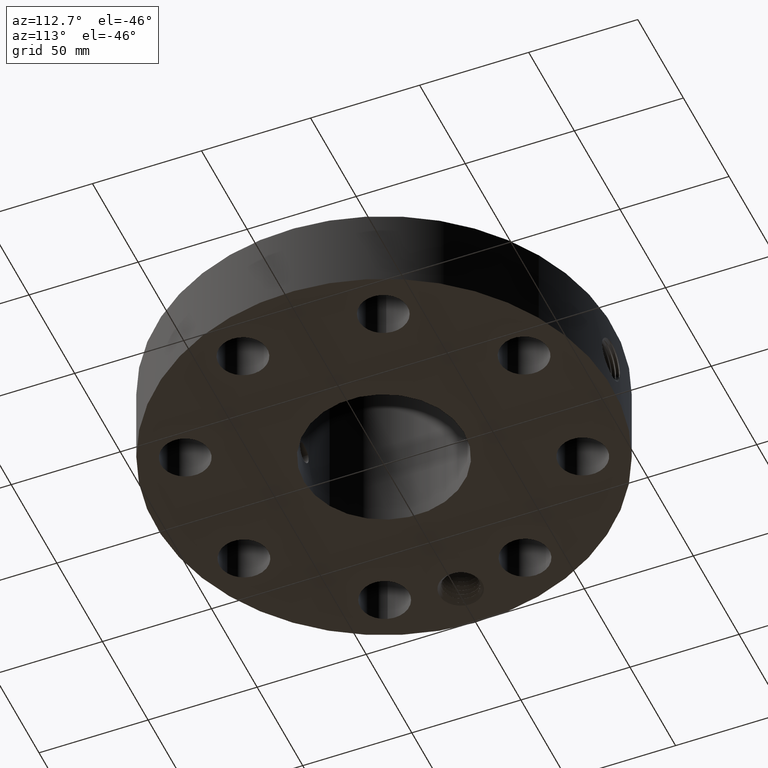
[diagram: clean part render]
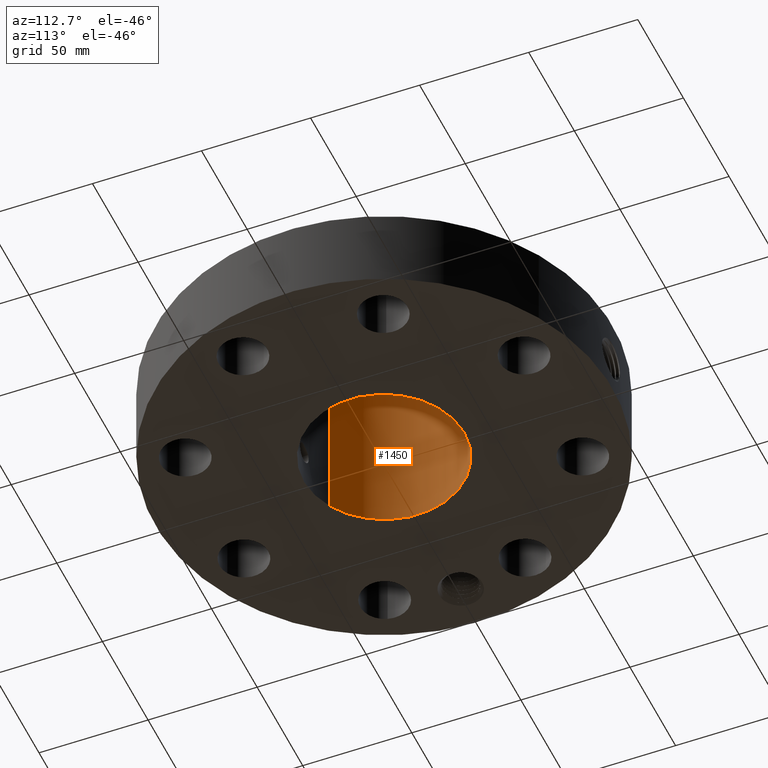
[diagram: same view with one face highlighted and labeled with its STEP entity id]
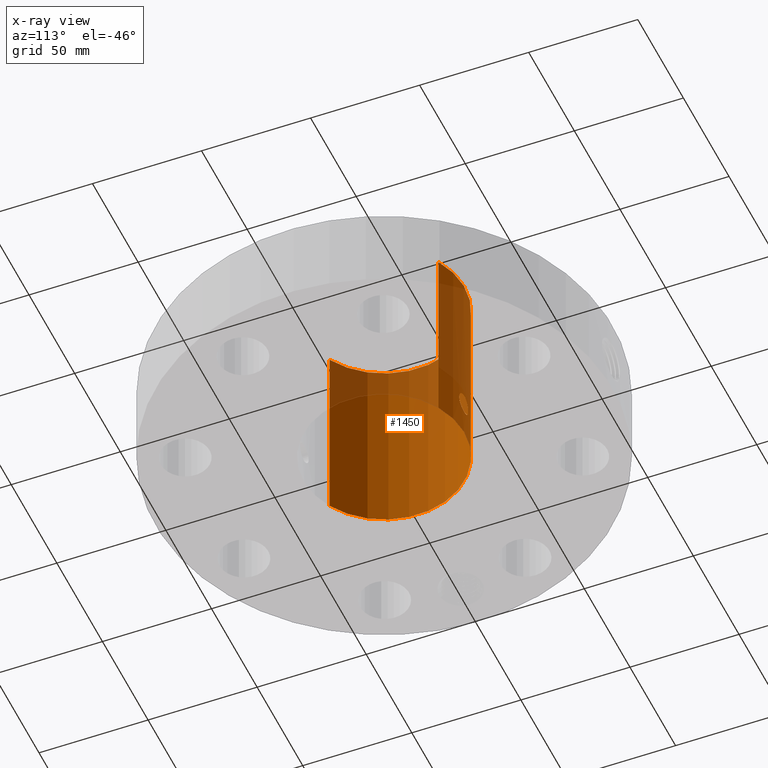
[diagram: x-ray of the same camera — body ghosted, the highlighted face saturated]
A machine part, auxiliary view. The second image highlights one B-rep face of the part: STEP entity #1450.
The next image is the same camera in x-ray: the body ghosted, the highlighted face saturated — about 30% of this face is hidden behind the body in this view.
In plain terms, the highlighted cylindrical surface (partial cylindrical patch) has radius 36.83 mm, axis along (0, 0, -1).
Its self-contained STEP definition (entity closure, byte-faithful):
#251=AXIS2_PLACEMENT_3D('Circle Axis2P3D',#249,#250,$) ;
#1327=AXIS2_PLACEMENT_3D('Cylinder Axis2P3D',#1324,#1325,#1326) ;
#1399=AXIS2_PLACEMENT_3D('Circle Axis2P3D',#1397,#1398,$) ;
#244=CARTESIAN_POINT('Vertex',(0.695167030979,1.27249471475,0.250000000001)) ;
#246=CARTESIAN_POINT('Vertex',(-0.695167030979,-1.27249471475,0.250000000001)) ;
#249=CARTESIAN_POINT('Axis2P3D Location',(0.,0.,0.250000000001)) ;
#1324=CARTESIAN_POINT('Axis2P3D Location',(0.,0.,2.00000000001)) ;
#1333=CARTESIAN_POINT('Vertex',(0.695167030979,1.27249471475,3.75000000002)) ;
#1335=CARTESIAN_POINT('Vertex',(-0.695167030979,-1.27249471475,3.75000000002)) ;
#1338=CARTESIAN_POINT('Line Origine',(0.695167030979,1.27249471475,2.00000000001)) ;
#1343=CARTESIAN_POINT('Line Origine',(-0.695167030979,-1.27249471475,2.00000000001)) ;
#1397=CARTESIAN_POINT('Axis2P3D Location',(0.,0.,3.75000000002)) ;
#1409=CARTESIAN_POINT('Control Point',(0.164546730355,1.44063332377,1.02989228849)) ;
#1410=CARTESIAN_POINT('Control Point',(0.153731070918,1.44186867031,1.04969022029)) ;
#1411=CARTESIAN_POINT('Control Point',(0.139944075107,1.4433405746,1.06785011419)) ;
#1412=CARTESIAN_POINT('Control Point',(0.123510243047,1.44489924446,1.08378933192)) ;
#1413=CARTESIAN_POINT('Control Point',(0.0771457667528,1.44849158589,1.11680313088)) ;
#1414=CARTESIAN_POINT('Control Point',(0.0211416426459,1.45046278414,1.13099774423)) ;
#1415=CARTESIAN_POINT('Control Point',(-0.0138877540667,1.45055904578,1.13166367444)) ;
#1416=CARTESIAN_POINT('Control Point',(-0.0704180054579,1.4488559579,1.11959366782)) ;
#1417=CARTESIAN_POINT('Control Point',(-0.118016251887,1.44536877231,1.08833659058)) ;
#1418=CARTESIAN_POINT('Control Point',(-0.135050957039,1.44381724598,1.07301259639)) ;
#1419=CARTESIAN_POINT('Control Point',(-0.174424603887,1.43973532201,1.02499594326)) ;
#1420=CARTESIAN_POINT('Control Point',(-0.192227243461,1.43719597583,0.964023576824)) ;
#1421=CARTESIAN_POINT('Control Point',(-0.192994709917,1.43707883877,0.92318772585)) ;
#1422=CARTESIAN_POINT('Control Point',(-0.183180576882,1.43850499696,0.884216738791)) ;
#1423=CARTESIAN_POINT('Control Point',(-0.164546730355,1.44063332377,0.850107711515)) ;
#1424=CARTESIAN_POINT('Vertex',(0.164546730355,1.44063332377,1.02989228849)) ;
#1426=CARTESIAN_POINT('Vertex',(-0.164546730355,1.44063332377,0.850107711515)) ;
#1430=CARTESIAN_POINT('Control Point',(-0.164546730355,1.44063332377,0.850107711515)) ;
#1431=CARTESIAN_POINT('Control Point',(-0.153731070916,1.44186867031,0.83030977971)) ;
#1432=CARTESIAN_POINT('Control Point',(-0.139944075102,1.4433405746,0.81214988581)) ;
#1433=CARTESIAN_POINT('Control Point',(-0.123510243057,1.44489924446,0.796210668093)) ;
#1434=CARTESIAN_POINT('Control Point',(-0.0771457667598,1.44849158589,0.76319686913)) ;
#1435=CARTESIAN_POINT('Control Point',(-0.0211416426477,1.45046278414,0.749002255781)) ;
#1436=CARTESIAN_POINT('Control Point',(0.013887754062,1.45055904578,0.748336325563)) ;
#1437=CARTESIAN_POINT('Control Point',(0.0704180054478,1.4488559579,0.760406332182)) ;
#1438=CARTESIAN_POINT('Control Point',(0.118016251874,1.44536877231,0.791663409415)) ;
#1439=CARTESIAN_POINT('Control Point',(0.135050957045,1.44381724598,0.806987403628)) ;
#1440=CARTESIAN_POINT('Control Point',(0.174424603893,1.439735322,0.855004056754)) ;
#1441=CARTESIAN_POINT('Control Point',(0.192227243466,1.43719597583,0.915976423199)) ;
#1442=CARTESIAN_POINT('Control Point',(0.192994709922,1.43707883877,0.956812274138)) ;
#1443=CARTESIAN_POINT('Control Point',(0.183180576887,1.43850499696,0.995783261208)) ;
#1444=CARTESIAN_POINT('Control Point',(0.164546730355,1.44063332377,1.02989228849)) ;
#250=DIRECTION('Axis2P3D Direction',(0.,0.,-0.0393700787402)) ;
#1325=DIRECTION('Axis2P3D Direction',(0.,0.,-0.0393700787402)) ;
#1326=DIRECTION('Axis2P3D XDirection',(-0.0188750212049,-0.0345504945626,0.)) ;
#1339=DIRECTION('Vector Direction',(0.,0.,-0.0393700787402)) ;
#1344=DIRECTION('Vector Direction',(0.,0.,-0.0393700787402)) ;
#1398=DIRECTION('Axis2P3D Direction',(0.,0.,-0.0393700787402)) ;
#1340=VECTOR('Line Direction',#1339,0.0393700787402) ;
#1345=VECTOR('Line Direction',#1344,0.0393700787402) ;
#1403=ORIENTED_EDGE('',*,*,#1401,.F.) ;
#1404=ORIENTED_EDGE('',*,*,#1347,.T.) ;
#1405=ORIENTED_EDGE('',*,*,#253,.T.) ;
#1406=ORIENTED_EDGE('',*,*,#1342,.F.) ;
#1447=ORIENTED_EDGE('',*,*,#1428,.F.) ;
#1448=ORIENTED_EDGE('',*,*,#1445,.F.) ;
#1449=FACE_BOUND('',#1446,.T.) ;
#1450=ADVANCED_FACE('PartBody',(#1407,#1449),#1328,.F.) ;
#1408=B_SPLINE_CURVE_WITH_KNOTS('',5,(#1409,#1410,#1411,#1412,#1413,#1414,#1415,#1416,#1417,#1418,#1419,#1420,#1421,#1422,#1423),.UNSPECIFIED.,.F.,.U.,(6,3,3,3,6),(0.,4.05789414961,10.1286634846,14.1897420017,21.1809178286),.UNSPECIFIED.) ;
#1429=B_SPLINE_CURVE_WITH_KNOTS('',5,(#1430,#1431,#1432,#1433,#1434,#1435,#1436,#1437,#1438,#1439,#1440,#1441,#1442,#1443,#1444),.UNSPECIFIED.,.F.,.U.,(6,3,3,3,6),(0.,4.05789415041,10.1286634856,14.1897420015,21.1809178301),.UNSPECIFIED.) ;
#252=CIRCLE('generated circle',#251,1.45000000001) ;
#1400=CIRCLE('generated circle',#1399,1.45000000001) ;
#1328=CYLINDRICAL_SURFACE('generated cylinder',#1327,1.45000000001) ;
#253=EDGE_CURVE('',#247,#245,#252,.T.) ;
#1342=EDGE_CURVE('',#1334,#245,#1341,.T.) ;
#1347=EDGE_CURVE('',#1336,#247,#1346,.T.) ;
#1401=EDGE_CURVE('',#1336,#1334,#1400,.T.) ;
#1428=EDGE_CURVE('',#1425,#1427,#1408,.T.) ;
#1445=EDGE_CURVE('',#1427,#1425,#1429,.T.) ;
#1402=EDGE_LOOP('',(#1403,#1404,#1405,#1406)) ;
#1446=EDGE_LOOP('',(#1447,#1448)) ;
#1407=FACE_OUTER_BOUND('',#1402,.T.) ;
#1341=LINE('Line',#1338,#1340) ;
#1346=LINE('Line',#1343,#1345) ;
#245=VERTEX_POINT('',#244) ;
#247=VERTEX_POINT('',#246) ;
#1334=VERTEX_POINT('',#1333) ;
#1336=VERTEX_POINT('',#1335) ;
#1425=VERTEX_POINT('',#1424) ;
#1427=VERTEX_POINT('',#1426) ;